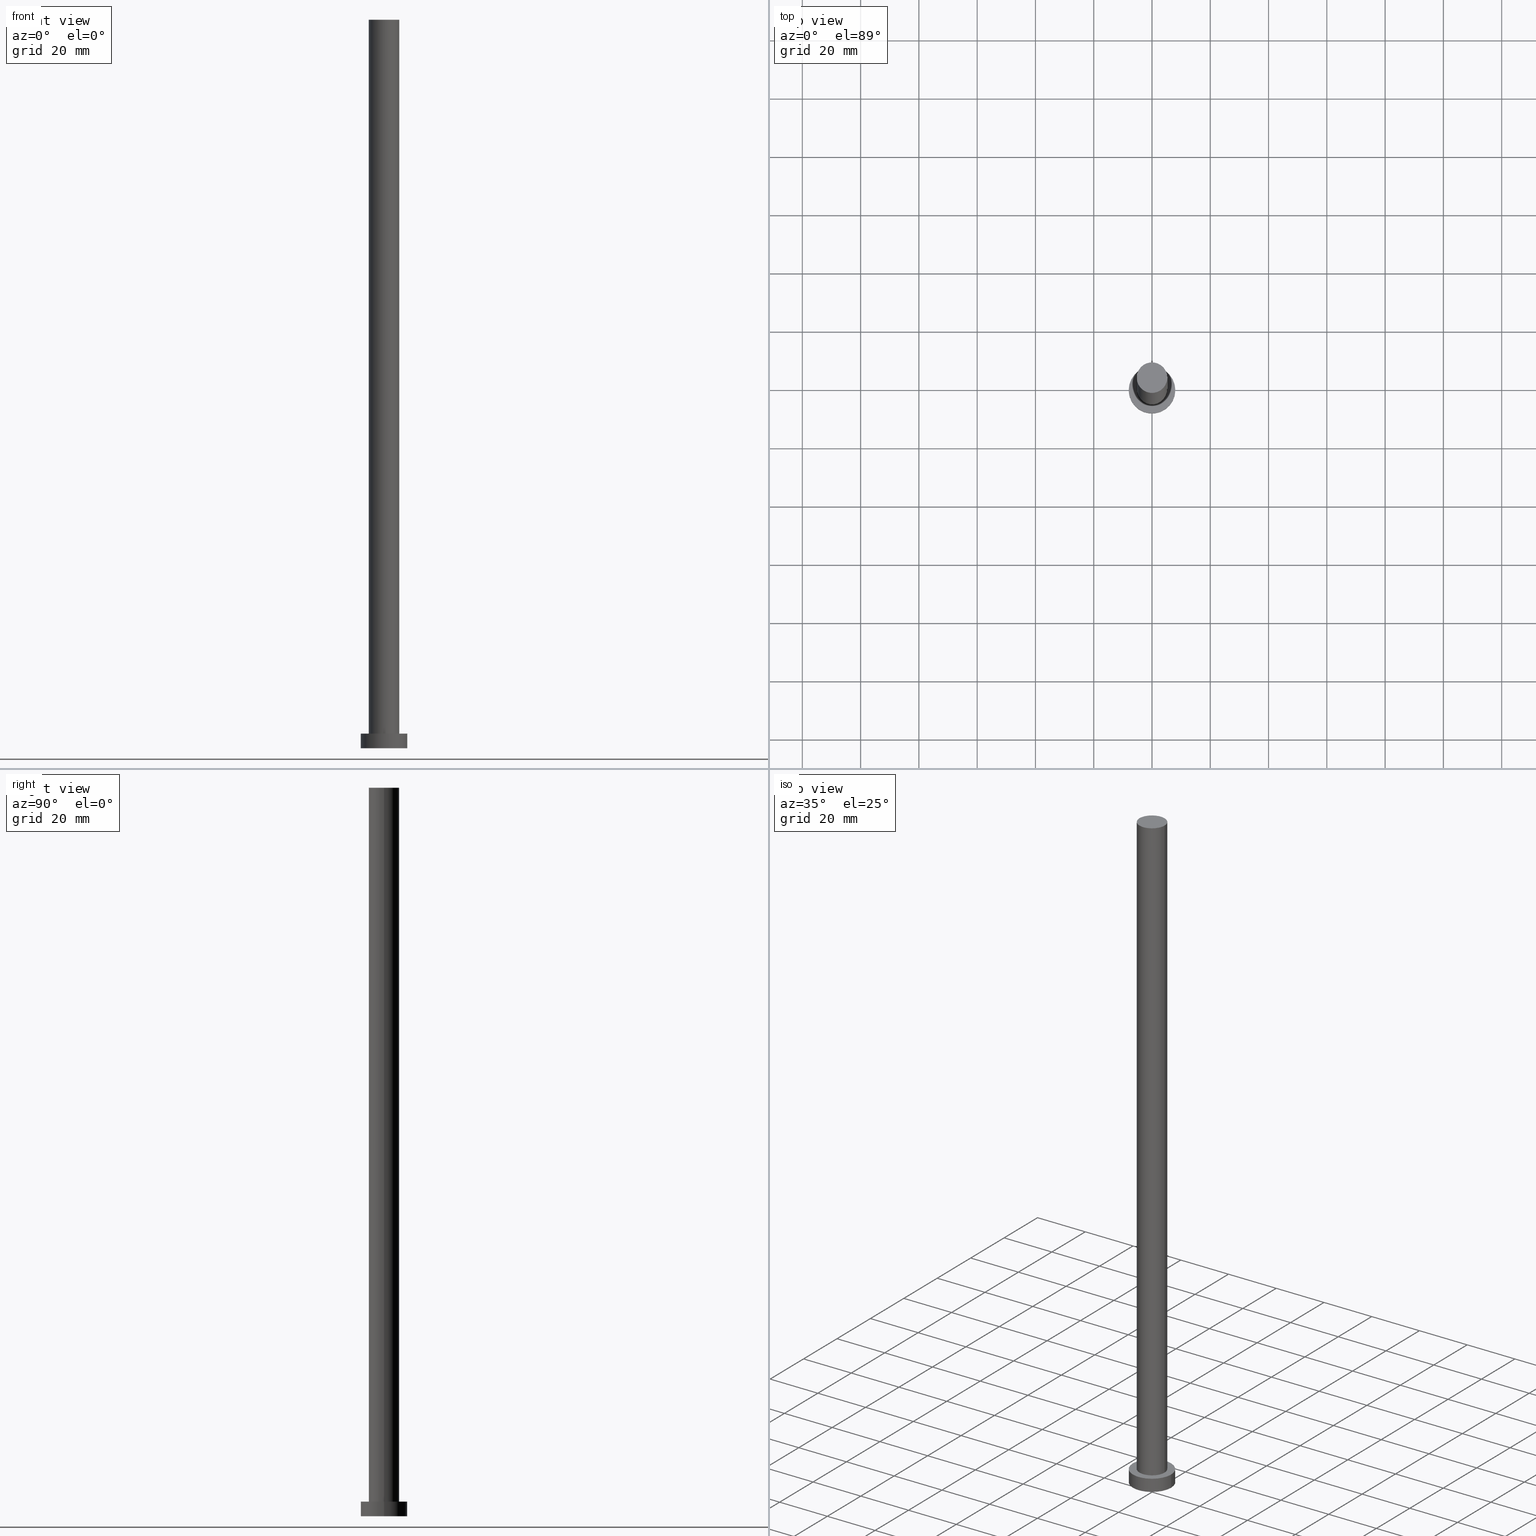
[diagram: canonical four-view strip — front | top / right | iso, engineering-drawing reading convention]
A machine part, canonical four-view strip (front | top / right | iso — engineering-drawing reading convention). The complete STEP part file that produces these views, byte-faithful:
ISO-10303-21;
HEADER;
FILE_DESCRIPTION (( 'STEP AP203' ),
    '1' );
FILE_NAME ('26c8.STEP',
    '2023-02-12T11:16:29',
    ( '' ),
    ( '' ),
    'SwSTEP 2.0',
    'SolidWorks 2019',
    '' );
FILE_SCHEMA (( 'CONFIG_CONTROL_DESIGN' ));
ENDSEC;

DATA;
#1 = EDGE_CURVE ( 'NONE', #167, #117, #75, .T. ) ;
#2 = PLANE ( 'NONE',  #174 ) ;
#3 = CARTESIAN_POINT ( 'NONE',  ( 0.000000000000000000, 0.000000000000000000, 250.0000000000000000 ) ) ;
#4 = CARTESIAN_POINT ( 'NONE',  ( 0.000000000000000000, 0.000000000000000000, 0.000000000000000000 ) ) ;
#5 = ADVANCED_FACE ( 'NONE', ( #60 ), #212, .T. ) ;
#6 = DIRECTION ( 'NONE',  ( 0.000000000000000000, 0.000000000000000000, 1.000000000000000000 ) ) ;
#7 =( NAMED_UNIT ( * ) SI_UNIT ( $, .STERADIAN. ) SOLID_ANGLE_UNIT ( ) );
#8 = LINE ( 'NONE', #108, #194 ) ;
#9 = DIRECTION ( 'NONE',  ( -0.000000000000000000, -0.000000000000000000, -1.000000000000000000 ) ) ;
#10 = APPROVAL_PERSON_ORGANIZATION ( #118, #71, #162 ) ;
#11 = EDGE_CURVE ( 'NONE', #74, #123, #8, .T. ) ;
#12 = COORDINATED_UNIVERSAL_TIME_OFFSET ( 1, 0, .AHEAD. ) ;
#13 = CARTESIAN_POINT ( 'NONE',  ( 0.000000000000000000, 0.000000000000000000, 0.000000000000000000 ) ) ;
#14 = DATE_TIME_ROLE ( 'classification_date' ) ;
#15 = PRODUCT_RELATED_PRODUCT_CATEGORY ( 'detail', '', ( #80 ) ) ;
#16 = CC_DESIGN_APPROVAL ( #35, ( #254 ) ) ;
#17 = APPLICATION_PROTOCOL_DEFINITION ( 'international standard', 'config_control_design', 1994, #225 ) ;
#18 = DIRECTION ( 'NONE',  ( 1.000000000000000000, 0.000000000000000000, 0.000000000000000000 ) ) ;
#19 = CARTESIAN_POINT ( 'NONE',  ( 5.250000000000000888, 6.429395695523605139E-16, 250.0000000000000000 ) ) ;
#20 = DIRECTION ( 'NONE',  ( 0.000000000000000000, 0.000000000000000000, 1.000000000000000000 ) ) ;
#21 = CC_DESIGN_PERSON_AND_ORGANIZATION_ASSIGNMENT ( #69, #190, ( #236 ) ) ;
#22 = CIRCLE ( 'NONE', #124, 8.000000000000000000 ) ;
#23 = LINE ( 'NONE', #247, #200 ) ;
#24 = CARTESIAN_POINT ( 'NONE',  ( 0.000000000000000000, 0.000000000000000000, 250.0000000000000000 ) ) ;
#25 = DIRECTION ( 'NONE',  ( -0.000000000000000000, -0.000000000000000000, -1.000000000000000000 ) ) ;
#26 = CIRCLE ( 'NONE', #163, 8.000000000000000000 ) ;
#27 = CC_DESIGN_PERSON_AND_ORGANIZATION_ASSIGNMENT ( #33, #32, ( #80 ) ) ;
#28 = APPROVAL_DATE_TIME ( #137, #114 ) ;
#29 = MECHANICAL_CONTEXT ( 'NONE', #48, 'mechanical' ) ;
#30 = ORIENTED_EDGE ( 'NONE', *, *, #110, .T. ) ;
#31 = EDGE_LOOP ( 'NONE', ( #193, #120, #155, #38 ) ) ;
#32 = PERSON_AND_ORGANIZATION_ROLE ( 'design_owner' ) ;
#33 = PERSON_AND_ORGANIZATION ( #164, #233 ) ;
#34 = FACE_OUTER_BOUND ( 'NONE', #31, .T. ) ;
#35 = APPROVAL ( #132, 'NEUR�EN�' ) ;
#36 = VERTEX_POINT ( 'NONE', #130 ) ;
#37 = MANIFOLD_SOLID_BREP ( 'P�idat vysunut�m3', #215 ) ;
#38 = ORIENTED_EDGE ( 'NONE', *, *, #173, .T. ) ;
#39 = LOCAL_TIME ( 12, 16, 29.00000000000000000, #121 ) ;
#40 = DIRECTION ( 'NONE',  ( 0.000000000000000000, 0.000000000000000000, 1.000000000000000000 ) ) ;
#41 = CALENDAR_DATE ( 2023, 12, 2 ) ;
#42 = ADVANCED_FACE ( 'NONE', ( #104 ), #214, .F. ) ;
#43 = FACE_OUTER_BOUND ( 'NONE', #165, .T. ) ;
#44 = DIRECTION ( 'NONE',  ( -1.000000000000000000, 0.000000000000000000, 0.000000000000000000 ) ) ;
#45 = CARTESIAN_POINT ( 'NONE',  ( 0.000000000000000000, 0.000000000000000000, 5.000000000000000000 ) ) ;
#46 = CARTESIAN_POINT ( 'NONE',  ( 0.000000000000000000, 0.000000000000000000, 5.000000000000000000 ) ) ;
#47 = DATE_TIME_ROLE ( 'creation_date' ) ;
#48 = APPLICATION_CONTEXT ( 'configuration controlled 3d designs of mechanical parts and assemblies' ) ;
#49 = PRODUCT_DEFINITION ( 'NEZN�M�', '', #254, #226 ) ;
#50 = CIRCLE ( 'NONE', #90, 5.250000000000000888 ) ;
#51 = DIRECTION ( 'NONE',  ( 1.000000000000000000, 0.000000000000000000, -0.000000000000000000 ) ) ;
#52 = LOCAL_TIME ( 12, 16, 29.00000000000000000, #204 ) ;
#53 = EDGE_LOOP ( 'NONE', ( #56, #140 ) ) ;
#54 = DATE_AND_TIME ( #237, #39 ) ;
#55 = CYLINDRICAL_SURFACE ( 'NONE', #250, 8.000000000000000000 ) ;
#56 = ORIENTED_EDGE ( 'NONE', *, *, #232, .T. ) ;
#57 = AXIS2_PLACEMENT_3D ( 'NONE', #211, #25, #44 ) ;
#58 = CC_DESIGN_DATE_AND_TIME_ASSIGNMENT ( #86, #47, ( #49 ) ) ;
#59 = CARTESIAN_POINT ( 'NONE',  ( -8.000000000000000000, 0.000000000000000000, 5.000000000000000000 ) ) ;
#60 = FACE_OUTER_BOUND ( 'NONE', #146, .T. ) ;
#61 = LOCAL_TIME ( 12, 16, 29.00000000000000000, #64 ) ;
#62 = AXIS2_PLACEMENT_3D ( 'NONE', #113, #219, #72 ) ;
#63 = DIRECTION ( 'NONE',  ( -0.000000000000000000, -0.000000000000000000, -1.000000000000000000 ) ) ;
#64 = COORDINATED_UNIVERSAL_TIME_OFFSET ( 1, 0, .AHEAD. ) ;
#65 = DIRECTION ( 'NONE',  ( -0.000000000000000000, -0.000000000000000000, -1.000000000000000000 ) ) ;
#66 = DATE_AND_TIME ( #41, #82 ) ;
#67 = DIRECTION ( 'NONE',  ( 1.000000000000000000, 0.000000000000000000, 0.000000000000000000 ) ) ;
#68 = AXIS2_PLACEMENT_3D ( 'NONE', #45, #206, #245 ) ;
#69 = PERSON_AND_ORGANIZATION ( #164, #233 ) ;
#70 = ORIENTED_EDGE ( 'NONE', *, *, #173, .F. ) ;
#71 = APPROVAL ( #197, 'NEUR�EN�' ) ;
#72 = DIRECTION ( 'NONE',  ( 1.000000000000000000, 0.000000000000000000, 0.000000000000000000 ) ) ;
#73 = PERSON_AND_ORGANIZATION ( #164, #233 ) ;
#74 = VERTEX_POINT ( 'NONE', #148 ) ;
#75 = LINE ( 'NONE', #179, #97 ) ;
#76 = CARTESIAN_POINT ( 'NONE',  ( 0.000000000000000000, 0.000000000000000000, 5.000000000000000000 ) ) ;
#77 = ADVANCED_BREP_SHAPE_REPRESENTATION ( '26c8', ( #37, #62 ), #93 ) ;
#78 = DIRECTION ( 'NONE',  ( -0.000000000000000000, -0.000000000000000000, -1.000000000000000000 ) ) ;
#79 = ORIENTED_EDGE ( 'NONE', *, *, #255, .F. ) ;
#80 = PRODUCT ( '26c8', '26c8', '', ( #29 ) ) ;
#81 = DIRECTION ( 'NONE',  ( 0.000000000000000000, 0.000000000000000000, 1.000000000000000000 ) ) ;
#82 = LOCAL_TIME ( 12, 16, 29.00000000000000000, #12 ) ;
#83 = EDGE_CURVE ( 'NONE', #95, #154, #207, .T. ) ;
#84 = DIRECTION ( 'NONE',  ( 0.000000000000000000, 0.000000000000000000, 1.000000000000000000 ) ) ;
#85 = AXIS2_PLACEMENT_3D ( 'NONE', #76, #241, #51 ) ;
#86 = DATE_AND_TIME ( #171, #109 ) ;
#87 = DIRECTION ( 'NONE',  ( -1.000000000000000000, 0.000000000000000000, 0.000000000000000000 ) ) ;
#88 = APPROVAL_ROLE ( '' ) ;
#89 = PERSON_AND_ORGANIZATION ( #164, #233 ) ;
#90 = AXIS2_PLACEMENT_3D ( 'NONE', #205, #20, #221 ) ;
#91 = COORDINATED_UNIVERSAL_TIME_OFFSET ( 1, 0, .AHEAD. ) ;
#92 = ORIENTED_EDGE ( 'NONE', *, *, #83, .F. ) ;
#93 =( GEOMETRIC_REPRESENTATION_CONTEXT ( 3 ) GLOBAL_UNCERTAINTY_ASSIGNED_CONTEXT ( ( #126 ) ) GLOBAL_UNIT_ASSIGNED_CONTEXT ( ( #223, #168, #7 ) ) REPRESENTATION_CONTEXT ( 'NONE', 'WORKASPACE' ) );
#94 = SECURITY_CLASSIFICATION_LEVEL ( 'unclassified' ) ;
#95 = VERTEX_POINT ( 'NONE', #103 ) ;
#96 = ORIENTED_EDGE ( 'NONE', *, *, #252, .F. ) ;
#97 = VECTOR ( 'NONE', #159, 1000.000000000000000 ) ;
#98 = ORIENTED_EDGE ( 'NONE', *, *, #210, .F. ) ;
#99 = ORIENTED_EDGE ( 'NONE', *, *, #240, .F. ) ;
#100 = CARTESIAN_POINT ( 'NONE',  ( 0.000000000000000000, 0.000000000000000000, 250.0000000000000000 ) ) ;
#101 = CARTESIAN_POINT ( 'NONE',  ( 0.000000000000000000, 0.000000000000000000, 250.0000000000000000 ) ) ;
#102 = ADVANCED_FACE ( 'NONE', ( #147, #201 ), #235, .T. ) ;
#103 = CARTESIAN_POINT ( 'NONE',  ( 5.250000000000000888, 6.429395695523605139E-16, 5.000000000000000000 ) ) ;
#104 = FACE_OUTER_BOUND ( 'NONE', #142, .T. ) ;
#105 = DIRECTION ( 'NONE',  ( 1.000000000000000000, 0.000000000000000000, 0.000000000000000000 ) ) ;
#106 = DIRECTION ( 'NONE',  ( 0.000000000000000000, 0.000000000000000000, 1.000000000000000000 ) ) ;
#107 = DIRECTION ( 'NONE',  ( -1.000000000000000000, 0.000000000000000000, 0.000000000000000000 ) ) ;
#108 = CARTESIAN_POINT ( 'NONE',  ( 8.000000000000000000, 9.797174393178825657E-16, 5.000000000000000000 ) ) ;
#109 = LOCAL_TIME ( 12, 16, 29.00000000000000000, #91 ) ;
#110 = EDGE_CURVE ( 'NONE', #123, #117, #22, .T. ) ;
#111 = PERSON_AND_ORGANIZATION ( #164, #233 ) ;
#112 = APPROVAL_DATE_TIME ( #54, #71 ) ;
#113 = CARTESIAN_POINT ( 'NONE',  ( 0.000000000000000000, 0.000000000000000000, 0.000000000000000000 ) ) ;
#114 = APPROVAL ( #216, 'NEUR�EN�' ) ;
#115 = AXIS2_PLACEMENT_3D ( 'NONE', #151, #106, #227 ) ;
#116 = ORIENTED_EDGE ( 'NONE', *, *, #1, .T. ) ;
#117 = VERTEX_POINT ( 'NONE', #166 ) ;
#118 = PERSON_AND_ORGANIZATION ( #164, #233 ) ;
#119 = ADVANCED_FACE ( 'NONE', ( #43 ), #55, .T. ) ;
#120 = ORIENTED_EDGE ( 'NONE', *, *, #232, .F. ) ;
#121 = COORDINATED_UNIVERSAL_TIME_OFFSET ( 1, 0, .AHEAD. ) ;
#122 = CYLINDRICAL_SURFACE ( 'NONE', #125, 5.250000000000000888 ) ;
#123 = VERTEX_POINT ( 'NONE', #181 ) ;
#124 = AXIS2_PLACEMENT_3D ( 'NONE', #202, #239, #144 ) ;
#125 = AXIS2_PLACEMENT_3D ( 'NONE', #100, #9, #87 ) ;
#126 = UNCERTAINTY_MEASURE_WITH_UNIT (LENGTH_MEASURE( 1.000000000000000082E-05 ), #223, 'distance_accuracy_value', 'NONE');
#127 = FACE_OUTER_BOUND ( 'NONE', #53, .T. ) ;
#128 = APPROVAL_PERSON_ORGANIZATION ( #89, #114, #175 ) ;
#129 = DIRECTION ( 'NONE',  ( 1.000000000000000000, 0.000000000000000000, 0.000000000000000000 ) ) ;
#130 = CARTESIAN_POINT ( 'NONE',  ( -5.250000000000000888, 0.000000000000000000, 250.0000000000000000 ) ) ;
#131 = CC_DESIGN_PERSON_AND_ORGANIZATION_ASSIGNMENT ( #189, #152, ( #49 ) ) ;
#132 = APPROVAL_STATUS ( 'not_yet_approved' ) ;
#133 = APPROVAL_PERSON_ORGANIZATION ( #73, #35, #88 ) ;
#134 = CYLINDRICAL_SURFACE ( 'NONE', #57, 8.000000000000000000 ) ;
#135 = PERSON_AND_ORGANIZATION_ROLE ( 'creator' ) ;
#136 = EDGE_CURVE ( 'NONE', #141, #36, #161, .T. ) ;
#137 = DATE_AND_TIME ( #251, #61 ) ;
#138 = EDGE_LOOP ( 'NONE', ( #70, #92 ) ) ;
#139 = APPLICATION_PROTOCOL_DEFINITION ( 'international standard', 'config_control_design', 1994, #48 ) ;
#140 = ORIENTED_EDGE ( 'NONE', *, *, #136, .T. ) ;
#141 = VERTEX_POINT ( 'NONE', #19 ) ;
#142 = EDGE_LOOP ( 'NONE', ( #98, #195 ) ) ;
#143 = DIRECTION ( 'NONE',  ( -1.000000000000000000, 0.000000000000000000, 0.000000000000000000 ) ) ;
#144 = DIRECTION ( 'NONE',  ( 1.000000000000000000, 0.000000000000000000, 0.000000000000000000 ) ) ;
#145 = CIRCLE ( 'NONE', #243, 8.000000000000000000 ) ;
#146 = EDGE_LOOP ( 'NONE', ( #217, #249, #231, #99 ) ) ;
#147 = FACE_BOUND ( 'NONE', #138, .T. ) ;
#148 = CARTESIAN_POINT ( 'NONE',  ( 8.000000000000000000, 9.797174393178825657E-16, 5.000000000000000000 ) ) ;
#149 = LINE ( 'NONE', #187, #224 ) ;
#150 = DIRECTION ( 'NONE',  ( -0.000000000000000000, -0.000000000000000000, -1.000000000000000000 ) ) ;
#151 = CARTESIAN_POINT ( 'NONE',  ( 0.000000000000000000, 0.000000000000000000, 5.000000000000000000 ) ) ;
#152 = PERSON_AND_ORGANIZATION_ROLE ( 'creator' ) ;
#153 = PERSON_AND_ORGANIZATION ( #164, #233 ) ;
#154 = VERTEX_POINT ( 'NONE', #238 ) ;
#155 = ORIENTED_EDGE ( 'NONE', *, *, #240, .T. ) ;
#156 = CIRCLE ( 'NONE', #115, 8.000000000000000000 ) ;
#157 = EDGE_LOOP ( 'NONE', ( #242, #96, #116, #172 ) ) ;
#158 = ADVANCED_FACE ( 'NONE', ( #127 ), #2, .T. ) ;
#159 = DIRECTION ( 'NONE',  ( -0.000000000000000000, -0.000000000000000000, -1.000000000000000000 ) ) ;
#160 = ORIENTED_EDGE ( 'NONE', *, *, #1, .F. ) ;
#161 = CIRCLE ( 'NONE', #188, 5.250000000000000888 ) ;
#162 = APPROVAL_ROLE ( '' ) ;
#163 = AXIS2_PLACEMENT_3D ( 'NONE', #13, #6, #129 ) ;
#164 = PERSON ( 'NEUR�EN�', 'NEUR�EN�', 'NEUR�EN�', ('NEUR�EN�'), ('NEUR�EN�'), ('NEUR�EN�') ) ;
#165 = EDGE_LOOP ( 'NONE', ( #79, #203, #30, #160 ) ) ;
#166 = CARTESIAN_POINT ( 'NONE',  ( -8.000000000000000000, 0.000000000000000000, 0.000000000000000000 ) ) ;
#167 = VERTEX_POINT ( 'NONE', #59 ) ;
#168 =( NAMED_UNIT ( * ) PLANE_ANGLE_UNIT ( ) SI_UNIT ( $, .RADIAN. ) );
#169 = AXIS2_PLACEMENT_3D ( 'NONE', #4, #186, #183 ) ;
#170 = DATE_AND_TIME ( #253, #52 ) ;
#171 = CALENDAR_DATE ( 2023, 12, 2 ) ;
#172 = ORIENTED_EDGE ( 'NONE', *, *, #210, .T. ) ;
#173 = EDGE_CURVE ( 'NONE', #154, #95, #50, .T. ) ;
#174 = AXIS2_PLACEMENT_3D ( 'NONE', #3, #81, #244 ) ;
#175 = APPROVAL_ROLE ( '' ) ;
#176 = ORIENTED_EDGE ( 'NONE', *, *, #252, .T. ) ;
#177 = ADVANCED_FACE ( 'NONE', ( #34 ), #122, .T. ) ;
#178 = ORIENTED_EDGE ( 'NONE', *, *, #255, .T. ) ;
#179 = CARTESIAN_POINT ( 'NONE',  ( -8.000000000000000000, 0.000000000000000000, 5.000000000000000000 ) ) ;
#180 = CC_DESIGN_APPROVAL ( #71, ( #49 ) ) ;
#181 = CARTESIAN_POINT ( 'NONE',  ( 8.000000000000000000, 9.797174393178825657E-16, 0.000000000000000000 ) ) ;
#182 = CC_DESIGN_PERSON_AND_ORGANIZATION_ASSIGNMENT ( #153, #135, ( #254 ) ) ;
#183 = DIRECTION ( 'NONE',  ( 1.000000000000000000, 0.000000000000000000, -0.000000000000000000 ) ) ;
#184 = AXIS2_PLACEMENT_3D ( 'NONE', #24, #63, #107 ) ;
#185 = FACE_OUTER_BOUND ( 'NONE', #157, .T. ) ;
#186 = DIRECTION ( 'NONE',  ( 0.000000000000000000, 0.000000000000000000, 1.000000000000000000 ) ) ;
#187 = CARTESIAN_POINT ( 'NONE',  ( 5.250000000000000888, 6.429395695523605139E-16, 250.0000000000000000 ) ) ;
#188 = AXIS2_PLACEMENT_3D ( 'NONE', #101, #40, #18 ) ;
#189 = PERSON_AND_ORGANIZATION ( #164, #233 ) ;
#190 = PERSON_AND_ORGANIZATION_ROLE ( 'classification_officer' ) ;
#191 = CC_DESIGN_PERSON_AND_ORGANIZATION_ASSIGNMENT ( #111, #248, ( #254 ) ) ;
#192 = EDGE_CURVE ( 'NONE', #141, #95, #149, .T. ) ;
#193 = ORIENTED_EDGE ( 'NONE', *, *, #192, .F. ) ;
#194 = VECTOR ( 'NONE', #150, 1000.000000000000000 ) ;
#195 = ORIENTED_EDGE ( 'NONE', *, *, #110, .F. ) ;
#196 = AXIS2_PLACEMENT_3D ( 'NONE', #208, #213, #67 ) ;
#197 = APPROVAL_STATUS ( 'not_yet_approved' ) ;
#198 = SHAPE_DEFINITION_REPRESENTATION ( #246, #77 ) ;
#199 = CARTESIAN_POINT ( 'NONE',  ( 0.000000000000000000, 0.000000000000000000, 5.000000000000000000 ) ) ;
#200 = VECTOR ( 'NONE', #65, 1000.000000000000000 ) ;
#201 = FACE_OUTER_BOUND ( 'NONE', #220, .T. ) ;
#202 = CARTESIAN_POINT ( 'NONE',  ( 0.000000000000000000, 0.000000000000000000, 0.000000000000000000 ) ) ;
#203 = ORIENTED_EDGE ( 'NONE', *, *, #11, .T. ) ;
#204 = COORDINATED_UNIVERSAL_TIME_OFFSET ( 1, 0, .AHEAD. ) ;
#205 = CARTESIAN_POINT ( 'NONE',  ( 0.000000000000000000, 0.000000000000000000, 5.000000000000000000 ) ) ;
#206 = DIRECTION ( 'NONE',  ( 0.000000000000000000, 0.000000000000000000, 1.000000000000000000 ) ) ;
#207 = CIRCLE ( 'NONE', #68, 5.250000000000000888 ) ;
#208 = CARTESIAN_POINT ( 'NONE',  ( 0.000000000000000000, 0.000000000000000000, 250.0000000000000000 ) ) ;
#209 = CIRCLE ( 'NONE', #196, 5.250000000000000888 ) ;
#210 = EDGE_CURVE ( 'NONE', #117, #123, #26, .T. ) ;
#211 = CARTESIAN_POINT ( 'NONE',  ( 0.000000000000000000, 0.000000000000000000, 5.000000000000000000 ) ) ;
#212 = CYLINDRICAL_SURFACE ( 'NONE', #184, 5.250000000000000888 ) ;
#213 = DIRECTION ( 'NONE',  ( 0.000000000000000000, 0.000000000000000000, 1.000000000000000000 ) ) ;
#214 = PLANE ( 'NONE',  #169 ) ;
#215 = CLOSED_SHELL ( 'NONE', ( #5, #119, #222, #102, #42, #177, #158 ) ) ;
#216 = APPROVAL_STATUS ( 'not_yet_approved' ) ;
#217 = ORIENTED_EDGE ( 'NONE', *, *, #136, .F. ) ;
#218 = CC_DESIGN_APPROVAL ( #114, ( #236 ) ) ;
#219 = DIRECTION ( 'NONE',  ( 0.000000000000000000, 0.000000000000000000, 1.000000000000000000 ) ) ;
#220 = EDGE_LOOP ( 'NONE', ( #176, #178 ) ) ;
#221 = DIRECTION ( 'NONE',  ( 1.000000000000000000, 0.000000000000000000, 0.000000000000000000 ) ) ;
#222 = ADVANCED_FACE ( 'NONE', ( #185 ), #134, .T. ) ;
#223 =( LENGTH_UNIT ( ) NAMED_UNIT ( * ) SI_UNIT ( .MILLI., .METRE. ) );
#224 = VECTOR ( 'NONE', #228, 1000.000000000000000 ) ;
#225 = APPLICATION_CONTEXT ( 'configuration controlled 3d designs of mechanical parts and assemblies' ) ;
#226 = DESIGN_CONTEXT ( 'detailed design', #225, 'design' ) ;
#227 = DIRECTION ( 'NONE',  ( 1.000000000000000000, 0.000000000000000000, 0.000000000000000000 ) ) ;
#228 = DIRECTION ( 'NONE',  ( -0.000000000000000000, -0.000000000000000000, -1.000000000000000000 ) ) ;
#229 = CC_DESIGN_SECURITY_CLASSIFICATION ( #236, ( #254 ) ) ;
#230 = APPROVAL_DATE_TIME ( #66, #35 ) ;
#231 = ORIENTED_EDGE ( 'NONE', *, *, #83, .T. ) ;
#232 = EDGE_CURVE ( 'NONE', #36, #141, #209, .T. ) ;
#233 = ORGANIZATION ( 'NEUR�EN�', 'NEUR�EN�', '' ) ;
#234 = CC_DESIGN_DATE_AND_TIME_ASSIGNMENT ( #170, #14, ( #236 ) ) ;
#235 = PLANE ( 'NONE',  #85 ) ;
#236 = SECURITY_CLASSIFICATION ( '', '', #94 ) ;
#237 = CALENDAR_DATE ( 2023, 12, 2 ) ;
#238 = CARTESIAN_POINT ( 'NONE',  ( -5.250000000000000888, 0.000000000000000000, 5.000000000000000000 ) ) ;
#239 = DIRECTION ( 'NONE',  ( 0.000000000000000000, 0.000000000000000000, 1.000000000000000000 ) ) ;
#240 = EDGE_CURVE ( 'NONE', #36, #154, #23, .T. ) ;
#241 = DIRECTION ( 'NONE',  ( 0.000000000000000000, 0.000000000000000000, 1.000000000000000000 ) ) ;
#242 = ORIENTED_EDGE ( 'NONE', *, *, #11, .F. ) ;
#243 = AXIS2_PLACEMENT_3D ( 'NONE', #46, #84, #105 ) ;
#244 = DIRECTION ( 'NONE',  ( 1.000000000000000000, 0.000000000000000000, -0.000000000000000000 ) ) ;
#245 = DIRECTION ( 'NONE',  ( 1.000000000000000000, 0.000000000000000000, 0.000000000000000000 ) ) ;
#246 = PRODUCT_DEFINITION_SHAPE ( 'NONE', 'NONE',  #49 ) ;
#247 = CARTESIAN_POINT ( 'NONE',  ( -5.250000000000000888, 0.000000000000000000, 250.0000000000000000 ) ) ;
#248 = PERSON_AND_ORGANIZATION_ROLE ( 'design_supplier' ) ;
#249 = ORIENTED_EDGE ( 'NONE', *, *, #192, .T. ) ;
#250 = AXIS2_PLACEMENT_3D ( 'NONE', #199, #78, #143 ) ;
#251 = CALENDAR_DATE ( 2023, 12, 2 ) ;
#252 = EDGE_CURVE ( 'NONE', #167, #74, #145, .T. ) ;
#253 = CALENDAR_DATE ( 2023, 12, 2 ) ;
#254 = PRODUCT_DEFINITION_FORMATION_WITH_SPECIFIED_SOURCE ( 'LIBOVOLN�', '', #80, .NOT_KNOWN. ) ;
#255 = EDGE_CURVE ( 'NONE', #74, #167, #156, .T. ) ;
ENDSEC;
END-ISO-10303-21;
